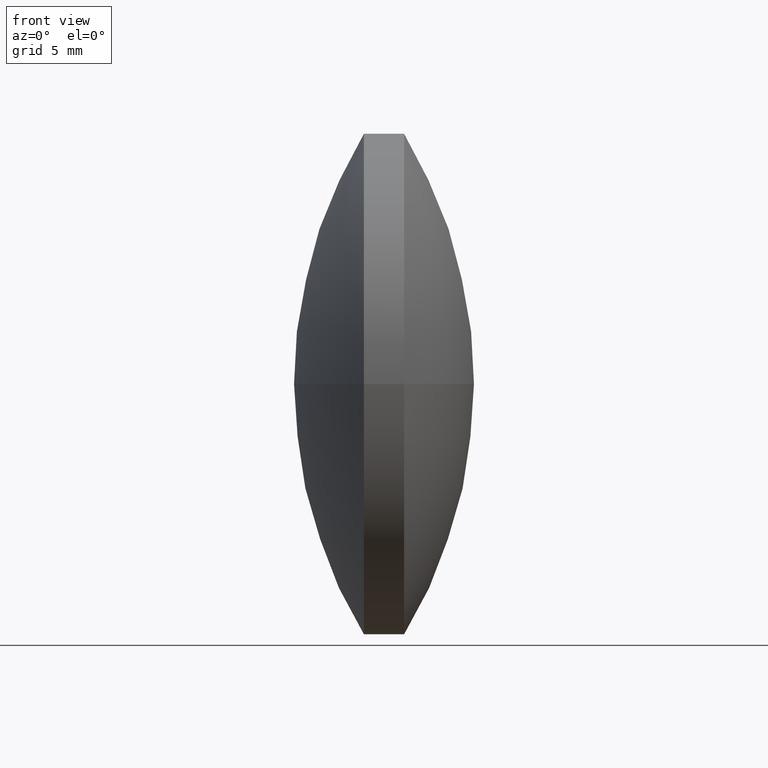
[diagram: clean part render]
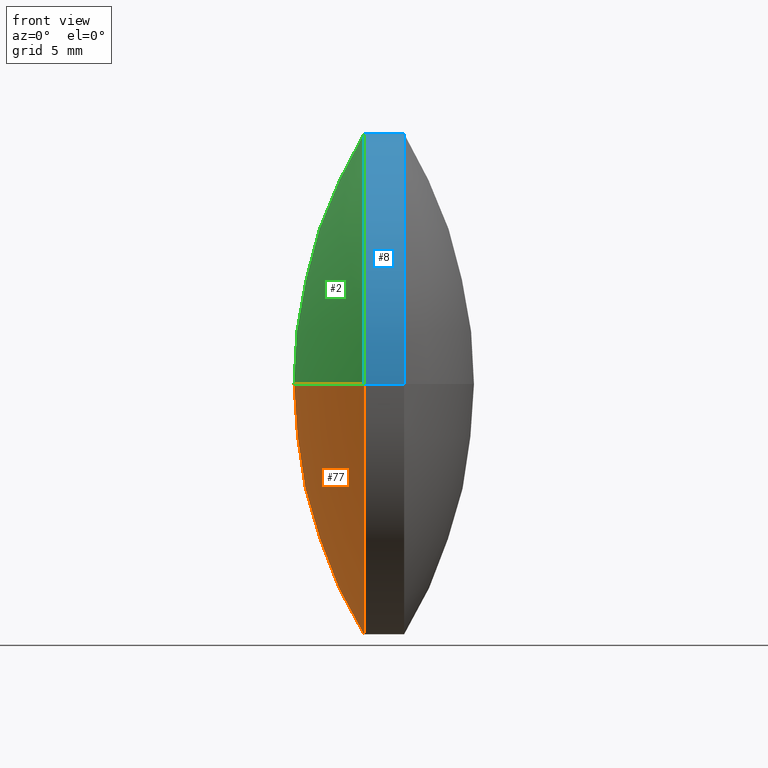
[diagram: same view with three faces highlighted in distinct colors, each labeled with its STEP entity id]
A machine part, front view with three faces highlighted in distinct colors.
Their STEP definitions:

[orange] entity #77 — the highlighted spherical surface has radius 24.1897 mm.
#14 = DIRECTION ( 'NONE',  ( -1.000000000000000000, 1.426066712043499300E-015, -0.0000000000000000000 ) ) ;
#37 = VERTEX_POINT ( 'NONE', #145 ) ;
#38 = DIRECTION ( 'NONE',  ( -1.110223024625159300E-015, -1.000000000000000000, 0.0000000000000000000 ) ) ;
#42 = VERTEX_POINT ( 'NONE', #218 ) ;
#60 = DIRECTION ( 'NONE',  ( 1.746428034274661700E-031, 1.224646799147353200E-016, -1.000000000000000000 ) ) ;
#77 = ADVANCED_FACE ( 'NONE', ( #126 ), #247, .T. ) ;
#81 = CARTESIAN_POINT ( 'NONE',  ( 84.09664741600607800, 35.35050494407936100, -1.530808498934187000E-015 ) ) ;
#85 = DIRECTION ( 'NONE',  ( 1.147412374197123200E-015, 1.000000000000000000, 0.0000000000000000000 ) ) ;
#89 = DIRECTION ( 'NONE',  ( 1.000000000000000000, 0.0000000000000000000, 0.0000000000000000000 ) ) ;
#98 = VERTEX_POINT ( 'NONE', #81 ) ;
#106 = DIRECTION ( 'NONE',  ( 0.0000000000000000000, 1.000000000000000000, 1.224646799147353000E-016 ) ) ;
#126 = FACE_OUTER_BOUND ( 'NONE', #215, .T. ) ;
#135 = CIRCLE ( 'NONE', #252, 24.18971264367814900 ) ;
#141 = EDGE_CURVE ( 'NONE', #98, #42, #135, .T. ) ;
#145 = CARTESIAN_POINT ( 'NONE',  ( 84.09664741600610700, 60.35050494407926900, 0.0000000000000000000 ) ) ;
#168 = AXIS2_PLACEMENT_3D ( 'NONE', #183, #228, #89 ) ;
#182 = CARTESIAN_POINT ( 'NONE',  ( 104.8063600596842700, 47.85050494407929700, 0.0000000000000000000 ) ) ;
#183 = CARTESIAN_POINT ( 'NONE',  ( 104.8063600596842700, 47.85050494407929700, 0.0000000000000000000 ) ) ;
#187 = ORIENTED_EDGE ( 'NONE', *, *, #225, .F. ) ;
#206 = EDGE_CURVE ( 'NONE', #37, #98, #302, .T. ) ;
#215 = EDGE_LOOP ( 'NONE', ( #276, #303, #187 ) ) ;
#218 = CARTESIAN_POINT ( 'NONE',  ( 80.61664741600613100, 47.85050494407933300, 0.0000000000000000000 ) ) ;
#222 = AXIS2_PLACEMENT_3D ( 'NONE', #267, #287, #85 ) ;
#225 = EDGE_CURVE ( 'NONE', #37, #42, #279, .T. ) ;
#228 = DIRECTION ( 'NONE',  ( 0.0000000000000000000, 0.0000000000000000000, 1.000000000000000000 ) ) ;
#230 = AXIS2_PLACEMENT_3D ( 'NONE', #291, #14, #38 ) ;
#247 = SPHERICAL_SURFACE ( 'NONE', #222, 24.18971264367814900 ) ;
#252 = AXIS2_PLACEMENT_3D ( 'NONE', #182, #60, #106 ) ;
#267 = CARTESIAN_POINT ( 'NONE',  ( 104.8063600596842700, 47.85050494407929700, 0.0000000000000000000 ) ) ;
#276 = ORIENTED_EDGE ( 'NONE', *, *, #206, .T. ) ;
#279 = CIRCLE ( 'NONE', #168, 24.18971264367814200 ) ;
#287 = DIRECTION ( 'NONE',  ( 0.0000000000000000000, 0.0000000000000000000, -1.000000000000000000 ) ) ;
#291 = CARTESIAN_POINT ( 'NONE',  ( 84.09664741600609300, 47.85050494407930400, 0.0000000000000000000 ) ) ;
#302 = CIRCLE ( 'NONE', #230, 12.49999999999997000 ) ;
#303 = ORIENTED_EDGE ( 'NONE', *, *, #141, .T. ) ;

[blue] entity #8 — the highlighted cylindrical surface (partial cylindrical patch) has radius 12.5 mm, axis along (-1, 0, -0).
#8 = ADVANCED_FACE ( 'NONE', ( #282 ), #161, .T. ) ;
#12 = VERTEX_POINT ( 'NONE', #242 ) ;
#22 = VERTEX_POINT ( 'NONE', #286 ) ;
#27 = VECTOR ( 'NONE', #79, 1000.000000000000000 ) ;
#30 = EDGE_CURVE ( 'NONE', #12, #98, #92, .T. ) ;
#34 = DIRECTION ( 'NONE',  ( -1.000000000000000000, 1.426066712043499300E-015, -0.0000000000000000000 ) ) ;
#37 = VERTEX_POINT ( 'NONE', #145 ) ;
#56 = ORIENTED_EDGE ( 'NONE', *, *, #30, .F. ) ;
#79 = DIRECTION ( 'NONE',  ( -1.000000000000000000, 1.426066712043499300E-015, -0.0000000000000000000 ) ) ;
#81 = CARTESIAN_POINT ( 'NONE',  ( 84.09664741600607800, 35.35050494407936100, -1.530808498934187000E-015 ) ) ;
#82 = ORIENTED_EDGE ( 'NONE', *, *, #238, .F. ) ;
#87 = EDGE_CURVE ( 'NONE', #22, #37, #211, .T. ) ;
#92 = LINE ( 'NONE', #124, #27 ) ;
#93 = CARTESIAN_POINT ( 'NONE',  ( 84.09664741600609300, 47.85050494407930400, 0.0000000000000000000 ) ) ;
#98 = VERTEX_POINT ( 'NONE', #81 ) ;
#101 = CARTESIAN_POINT ( 'NONE',  ( 76.62621286149058600, 60.35050494407928300, 1.530808498934187800E-015 ) ) ;
#104 = DIRECTION ( 'NONE',  ( -1.110223024625159300E-015, -1.000000000000000000, 0.0000000000000000000 ) ) ;
#110 = ORIENTED_EDGE ( 'NONE', *, *, #87, .T. ) ;
#124 = CARTESIAN_POINT ( 'NONE',  ( 76.62621286149055800, 35.35050494407934700, 0.0000000000000000000 ) ) ;
#145 = CARTESIAN_POINT ( 'NONE',  ( 84.09664741600610700, 60.35050494407926900, 0.0000000000000000000 ) ) ;
#148 = DIRECTION ( 'NONE',  ( -1.000000000000000000, 1.426066712043499300E-015, -0.0000000000000000000 ) ) ;
#159 = CIRCLE ( 'NONE', #163, 12.49999999999997000 ) ;
#161 = CYLINDRICAL_SURFACE ( 'NONE', #235, 12.49999999999997000 ) ;
#163 = AXIS2_PLACEMENT_3D ( 'NONE', #223, #34, #104 ) ;
#189 = ORIENTED_EDGE ( 'NONE', *, *, #198, .T. ) ;
#194 = AXIS2_PLACEMENT_3D ( 'NONE', #93, #257, #258 ) ;
#198 = EDGE_CURVE ( 'NONE', #12, #22, #159, .T. ) ;
#199 = DIRECTION ( 'NONE',  ( -1.110223024625159300E-015, -1.000000000000000000, 0.0000000000000000000 ) ) ;
#211 = LINE ( 'NONE', #101, #266 ) ;
#219 = CARTESIAN_POINT ( 'NONE',  ( 76.62621286149057200, 47.85050494407931900, 0.0000000000000000000 ) ) ;
#220 = EDGE_LOOP ( 'NONE', ( #189, #110, #82, #56 ) ) ;
#223 = CARTESIAN_POINT ( 'NONE',  ( 86.09664741600609300, 47.85050494407930400, 0.0000000000000000000 ) ) ;
#235 = AXIS2_PLACEMENT_3D ( 'NONE', #219, #269, #199 ) ;
#238 = EDGE_CURVE ( 'NONE', #98, #37, #290, .T. ) ;
#242 = CARTESIAN_POINT ( 'NONE',  ( 86.09664741600606400, 35.35050494407931900, -1.530808498934187200E-015 ) ) ;
#257 = DIRECTION ( 'NONE',  ( -1.000000000000000000, 1.426066712043499300E-015, -0.0000000000000000000 ) ) ;
#258 = DIRECTION ( 'NONE',  ( -1.110223024625159300E-015, -1.000000000000000000, 0.0000000000000000000 ) ) ;
#266 = VECTOR ( 'NONE', #148, 1000.000000000000000 ) ;
#269 = DIRECTION ( 'NONE',  ( -1.000000000000000000, 1.426066712043499300E-015, -0.0000000000000000000 ) ) ;
#282 = FACE_OUTER_BOUND ( 'NONE', #220, .T. ) ;
#286 = CARTESIAN_POINT ( 'NONE',  ( 86.09664741600610700, 60.35050494407926900, 0.0000000000000000000 ) ) ;
#290 = CIRCLE ( 'NONE', #194, 12.49999999999997000 ) ;

[green] entity #2 — the highlighted spherical surface has radius 24.1897 mm.
#2 = ADVANCED_FACE ( 'NONE', ( #23 ), #233, .T. ) ;
#10 = DIRECTION ( 'NONE',  ( 1.147412374197123200E-015, 1.000000000000000000, 0.0000000000000000000 ) ) ;
#23 = FACE_OUTER_BOUND ( 'NONE', #172, .T. ) ;
#37 = VERTEX_POINT ( 'NONE', #145 ) ;
#40 = CARTESIAN_POINT ( 'NONE',  ( 104.8063600596842700, 47.85050494407929700, 0.0000000000000000000 ) ) ;
#42 = VERTEX_POINT ( 'NONE', #218 ) ;
#54 = DIRECTION ( 'NONE',  ( 0.0000000000000000000, 0.0000000000000000000, -1.000000000000000000 ) ) ;
#60 = DIRECTION ( 'NONE',  ( 1.746428034274661700E-031, 1.224646799147353200E-016, -1.000000000000000000 ) ) ;
#65 = AXIS2_PLACEMENT_3D ( 'NONE', #40, #54, #10 ) ;
#66 = ORIENTED_EDGE ( 'NONE', *, *, #238, .T. ) ;
#81 = CARTESIAN_POINT ( 'NONE',  ( 84.09664741600607800, 35.35050494407936100, -1.530808498934187000E-015 ) ) ;
#89 = DIRECTION ( 'NONE',  ( 1.000000000000000000, 0.0000000000000000000, 0.0000000000000000000 ) ) ;
#93 = CARTESIAN_POINT ( 'NONE',  ( 84.09664741600609300, 47.85050494407930400, 0.0000000000000000000 ) ) ;
#95 = ORIENTED_EDGE ( 'NONE', *, *, #225, .T. ) ;
#98 = VERTEX_POINT ( 'NONE', #81 ) ;
#106 = DIRECTION ( 'NONE',  ( 0.0000000000000000000, 1.000000000000000000, 1.224646799147353000E-016 ) ) ;
#108 = ORIENTED_EDGE ( 'NONE', *, *, #141, .F. ) ;
#135 = CIRCLE ( 'NONE', #252, 24.18971264367814900 ) ;
#141 = EDGE_CURVE ( 'NONE', #98, #42, #135, .T. ) ;
#145 = CARTESIAN_POINT ( 'NONE',  ( 84.09664741600610700, 60.35050494407926900, 0.0000000000000000000 ) ) ;
#168 = AXIS2_PLACEMENT_3D ( 'NONE', #183, #228, #89 ) ;
#172 = EDGE_LOOP ( 'NONE', ( #108, #66, #95 ) ) ;
#182 = CARTESIAN_POINT ( 'NONE',  ( 104.8063600596842700, 47.85050494407929700, 0.0000000000000000000 ) ) ;
#183 = CARTESIAN_POINT ( 'NONE',  ( 104.8063600596842700, 47.85050494407929700, 0.0000000000000000000 ) ) ;
#194 = AXIS2_PLACEMENT_3D ( 'NONE', #93, #257, #258 ) ;
#218 = CARTESIAN_POINT ( 'NONE',  ( 80.61664741600613100, 47.85050494407933300, 0.0000000000000000000 ) ) ;
#225 = EDGE_CURVE ( 'NONE', #37, #42, #279, .T. ) ;
#228 = DIRECTION ( 'NONE',  ( 0.0000000000000000000, 0.0000000000000000000, 1.000000000000000000 ) ) ;
#233 = SPHERICAL_SURFACE ( 'NONE', #65, 24.18971264367814900 ) ;
#238 = EDGE_CURVE ( 'NONE', #98, #37, #290, .T. ) ;
#252 = AXIS2_PLACEMENT_3D ( 'NONE', #182, #60, #106 ) ;
#257 = DIRECTION ( 'NONE',  ( -1.000000000000000000, 1.426066712043499300E-015, -0.0000000000000000000 ) ) ;
#258 = DIRECTION ( 'NONE',  ( -1.110223024625159300E-015, -1.000000000000000000, 0.0000000000000000000 ) ) ;
#279 = CIRCLE ( 'NONE', #168, 24.18971264367814200 ) ;
#290 = CIRCLE ( 'NONE', #194, 12.49999999999997000 ) ;